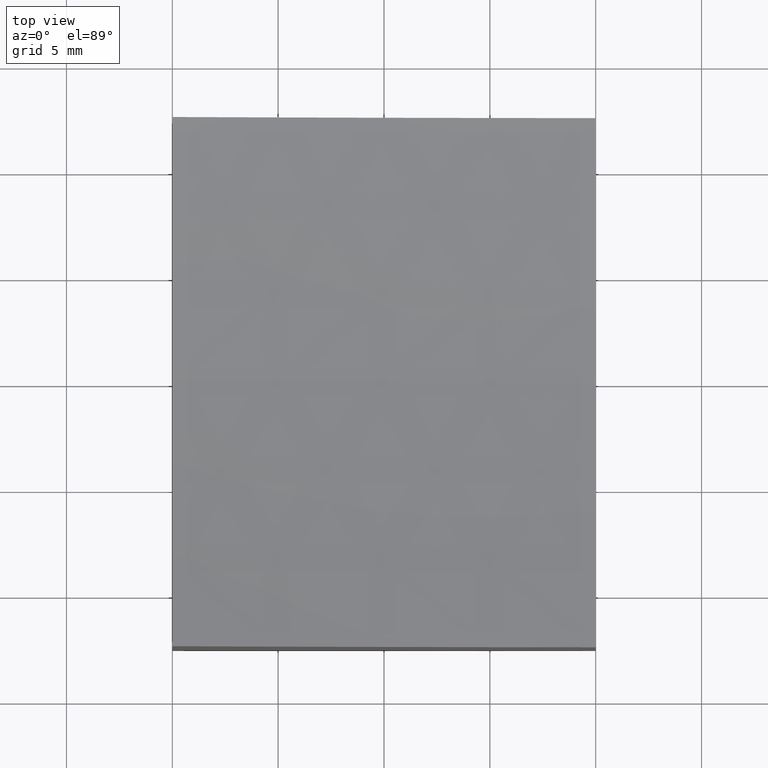
[diagram: clean part render]
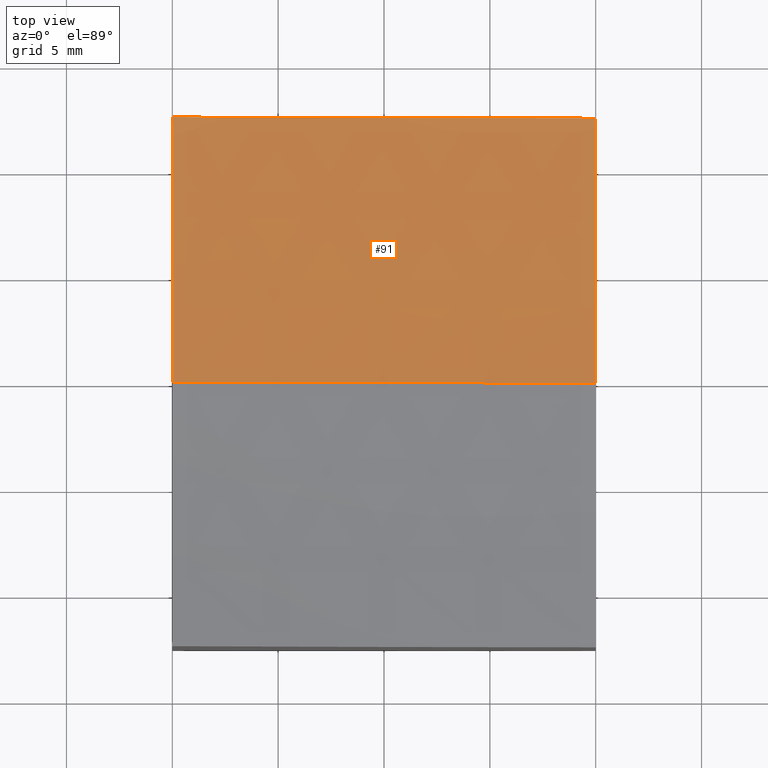
[diagram: same view with one face highlighted and labeled with its STEP entity id]
A machine part, top view. The second image highlights one B-rep face of the part: STEP entity #91.
In plain terms, the highlighted spherical surface has radius 100 mm.
Its self-contained STEP definition (entity closure, byte-faithful):
#31 = AXIS2_PLACEMENT_3D ( 'NONE', #60, #147, #228 ) ;
#40 = CIRCLE ( 'NONE', #198, 100.0000000000000000 ) ;
#45 = VERTEX_POINT ( 'NONE', #182 ) ;
#50 = DIRECTION ( 'NONE',  ( 1.000000000000000000, 1.224646799147353207E-16, 0.000000000000000000 ) ) ;
#53 = CIRCLE ( 'NONE', #199, 99.87492177719090591 ) ;
#54 = DIRECTION ( 'NONE',  ( 0.000000000000000000, 0.000000000000000000, -1.000000000000000000 ) ) ;
#60 = CARTESIAN_POINT ( 'NONE',  ( 15.00000000000001421, 0.000000000000000000, 99.00000000000000000 ) ) ;
#70 = DIRECTION ( 'NONE',  ( 1.000000000000000000, 1.748436918438156363E-16, 0.000000000000000000 ) ) ;
#71 = CARTESIAN_POINT ( 'NONE',  ( -9.999999999999998224, 12.49999999999999645, 2.985678151642384925 ) ) ;
#72 = CIRCLE ( 'NONE', #203, 99.21567416492216296 ) ;
#73 = DIRECTION ( 'NONE',  ( 0.000000000000000000, 0.000000000000000000, 1.000000000000000000 ) ) ;
#74 = CIRCLE ( 'NONE', #235, 96.82458365518542109 ) ;
#76 = CARTESIAN_POINT ( 'NONE',  ( -10.00000000000000000, 0.000000000000000000, 99.00000000000000000 ) ) ;
#84 = ORIENTED_EDGE ( 'NONE', *, *, #275, .F. ) ;
#91 = ADVANCED_FACE ( 'NONE', ( #104 ), #166, .F. ) ;
#93 = DIRECTION ( 'NONE',  ( 1.224646799147353207E-16, -1.000000000000000000, -1.487096486582537186E-32 ) ) ;
#104 = FACE_OUTER_BOUND ( 'NONE', #146, .T. ) ;
#108 = VERTEX_POINT ( 'NONE', #272 ) ;
#114 = CARTESIAN_POINT ( 'NONE',  ( 10.00000000000000178, 12.50000000000000000, -0.08960591303207310343 ) ) ;
#125 = DIRECTION ( 'NONE',  ( 1.000000000000000000, 0.000000000000000000, 0.000000000000000000 ) ) ;
#137 = CARTESIAN_POINT ( 'NONE',  ( 15.00000000000001421, 0.000000000000000000, 99.00000000000000000 ) ) ;
#141 = EDGE_CURVE ( 'NONE', #45, #108, #40, .T. ) ;
#143 = VERTEX_POINT ( 'NONE', #114 ) ;
#146 = EDGE_LOOP ( 'NONE', ( #211, #172, #84, #181 ) ) ;
#147 = DIRECTION ( 'NONE',  ( 0.000000000000000000, -1.000000000000000000, -0.000000000000000000 ) ) ;
#155 = VERTEX_POINT ( 'NONE', #71 ) ;
#166 = SPHERICAL_SURFACE ( 'NONE', #31, 100.0000000000000000 ) ;
#172 = ORIENTED_EDGE ( 'NONE', *, *, #141, .T. ) ;
#176 = CARTESIAN_POINT ( 'NONE',  ( 15.00000000000001421, 12.50000000000000178, 99.00000000000000000 ) ) ;
#181 = ORIENTED_EDGE ( 'NONE', *, *, #200, .F. ) ;
#182 = CARTESIAN_POINT ( 'NONE',  ( -9.999999999999998224, -3.061616997868383043E-15, 2.175416344814578906 ) ) ;
#189 = CARTESIAN_POINT ( 'NONE',  ( 10.00000000000000178, 0.000000000000000000, 99.00000000000000000 ) ) ;
#198 = AXIS2_PLACEMENT_3D ( 'NONE', #137, #93, #50 ) ;
#199 = AXIS2_PLACEMENT_3D ( 'NONE', #189, #273, #73 ) ;
#200 = EDGE_CURVE ( 'NONE', #155, #143, #72, .T. ) ;
#203 = AXIS2_PLACEMENT_3D ( 'NONE', #176, #259, #70 ) ;
#211 = ORIENTED_EDGE ( 'NONE', *, *, #239, .F. ) ;
#228 = DIRECTION ( 'NONE',  ( 1.000000000000000000, 0.000000000000000000, -1.387778780781445676E-16 ) ) ;
#235 = AXIS2_PLACEMENT_3D ( 'NONE', #76, #125, #54 ) ;
#239 = EDGE_CURVE ( 'NONE', #45, #155, #74, .T. ) ;
#259 = DIRECTION ( 'NONE',  ( 1.734723475976807094E-16, -1.000000000000000000, 0.000000000000000000 ) ) ;
#272 = CARTESIAN_POINT ( 'NONE',  ( 10.00000000000000178, -6.123233995736767268E-16, -0.8749217771908888164 ) ) ;
#273 = DIRECTION ( 'NONE',  ( -1.000000000000000000, 0.000000000000000000, 0.000000000000000000 ) ) ;
#275 = EDGE_CURVE ( 'NONE', #143, #108, #53, .T. ) ;